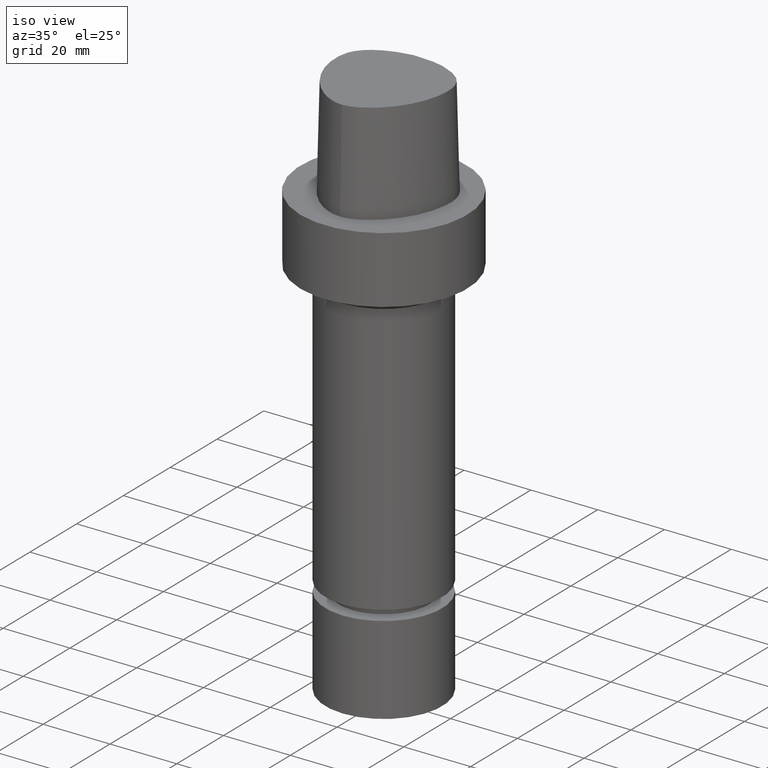
[diagram: clean part render]
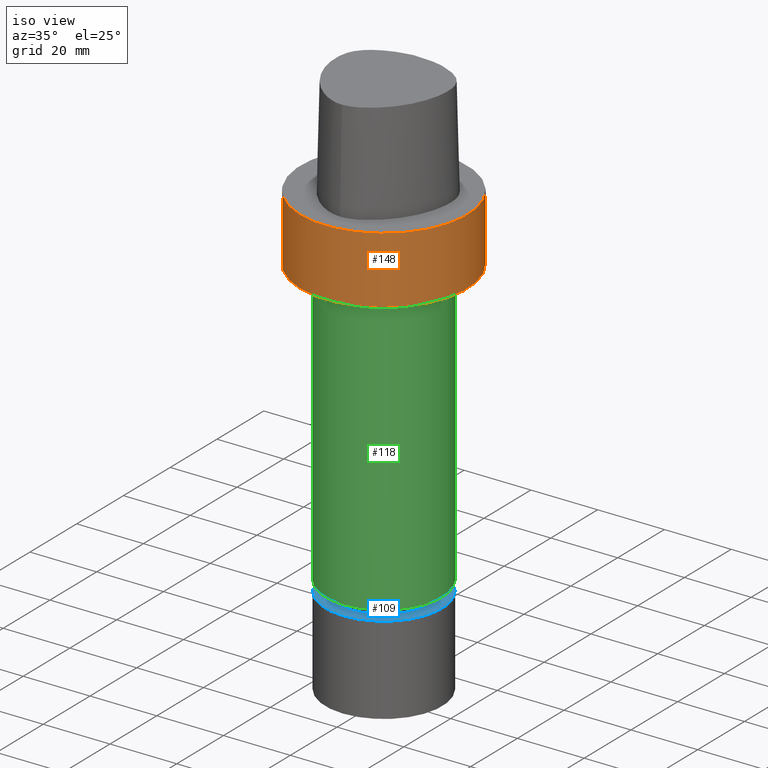
[diagram: same view with three faces highlighted in distinct colors, each labeled with its STEP entity id]
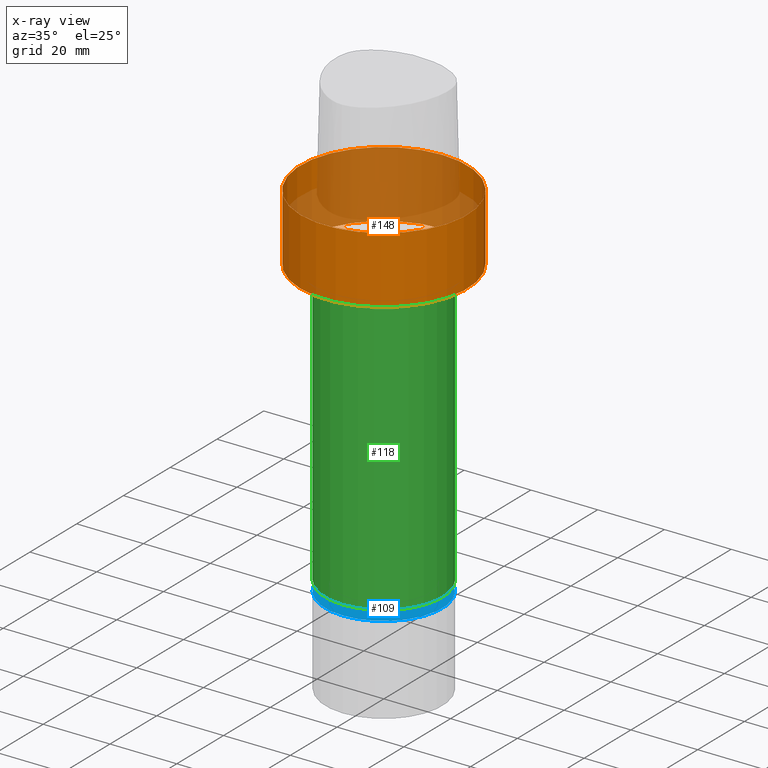
[diagram: x-ray of the same camera — body ghosted, the three highlighted faces saturated]
A machine part, iso view with three faces highlighted in distinct colors.
The next image is the same camera in x-ray (body ghosted, the three faces saturated) — at least one of them is partly hidden behind the body in this view.
Their STEP definitions:

[orange] entity #148 — the highlighted cylindrical surface (bore or boss wall) has radius 25 mm, axis along (0, 0, -1).
#69=EDGE_CURVE('Unnamed[1]',#174,#174,#175,.T.);
#123=EDGE_CURVE('Unnamed[1]',#255,#255,#256,.T.);
#148=ADVANCED_FACE('Unnamed[1]',(#290,#291),#292,.T.);
#174=VERTEX_POINT('',#312);
#175=CIRCLE('',#313,25.0);
#255=VERTEX_POINT('',#939);
#256=CIRCLE('',#940,25.0);
#290=FACE_BOUND('',#986,.T.);
#291=FACE_BOUND('',#987,.T.);
#292=CYLINDRICAL_SURFACE('',#988,25.0);
#312=CARTESIAN_POINT('',(1.22464679914735E-015,25.0,-20.0));
#313=AXIS2_PLACEMENT_3D('',#996,#997,#998);
#939=CARTESIAN_POINT('',(-3.08148791101958E-031,25.0,3.06161699786838E-015));
#940=AXIS2_PLACEMENT_3D('',#1080,#1081,#1082);
#986=EDGE_LOOP('',(#1114));
#987=EDGE_LOOP('',(#1115));
#988=AXIS2_PLACEMENT_3D('',#1116,#1117,#1118);
#996=CARTESIAN_POINT('',(1.22464679914735E-015,2.44929359829471E-015,-20.0));
#997=DIRECTION('',(6.12323399573677E-017,1.22464679914735E-016,-1.0));
#998=DIRECTION('',(-1.23259516440783E-032,1.0,1.22464679914735E-016));
#1080=CARTESIAN_POINT('',(0.0,0.0,0.0));
#1081=DIRECTION('',(6.12323399573677E-017,1.22464679914735E-016,-1.0));
#1082=DIRECTION('',(-1.23259516440783E-032,1.0,1.22464679914735E-016));
#1114=ORIENTED_EDGE('',*,*,#69,.F.);
#1115=ORIENTED_EDGE('',*,*,#123,.T.);
#1116=CARTESIAN_POINT('',(6.12323399573677E-016,1.22464679914735E-015,-10.0));
#1117=DIRECTION('',(6.12323399573677E-017,1.22464679914735E-016,-1.0));
#1118=DIRECTION('',(-1.23259516440783E-032,1.0,1.22464679914735E-016));

[blue] entity #109 — the highlighted planar face has unit normal (-0, -0, 1).
#85=EDGE_CURVE('Unnamed[1]',#198,#198,#199,.T.);
#109=ADVANCED_FACE('Unnamed[1]',(#232),#233,.T.);
#198=VERTEX_POINT('',#774);
#199=CIRCLE('',#775,17.5);
#232=FACE_OUTER_BOUND('',#911,.T.);
#233=PLANE('',#912);
#774=CARTESIAN_POINT('',(6.64370981970575E-015,17.5,-108.500015258789));
#775=AXIS2_PLACEMENT_3D('',#1019,#1020,#1021);
#911=EDGE_LOOP('',(#1052));
#912=AXIS2_PLACEMENT_3D('',#1053,#1054,#1055);
#1019=CARTESIAN_POINT('',(6.64370981970575E-015,1.32874196394115E-014,-108.500015258789));
#1020=DIRECTION('',(6.12323399573677E-017,1.22464679914735E-016,-1.0));
#1021=DIRECTION('',(-1.23259516440783E-032,1.0,1.22464679914735E-016));
#1052=ORIENTED_EDGE('',*,*,#85,.F.);
#1053=CARTESIAN_POINT('',(6.64370981970575E-015,8.75000000000002,-108.500015258789));
#1054=DIRECTION('',(-6.12323399573677E-017,-1.22464679914735E-016,1.0));
#1055=DIRECTION('',(1.23259516440783E-032,-1.0,-1.22464679914735E-016));

[green] entity #118 — the highlighted cylindrical surface (bore or boss wall) has radius 17.5 mm, axis along (0, 0, -1).
#74=EDGE_CURVE('Unnamed[1]',#181,#181,#182,.T.);
#101=EDGE_CURVE('Unnamed[1]',#222,#222,#223,.T.);
#118=ADVANCED_FACE('Unnamed[1]',(#246,#247),#248,.T.);
#181=VERTEX_POINT('',#704);
#182=CIRCLE('',#705,17.4999999999997);
#222=VERTEX_POINT('',#899);
#223=CIRCLE('',#900,17.4999999999995);
#246=FACE_BOUND('',#928,.T.);
#247=FACE_BOUND('',#929,.T.);
#248=CYLINDRICAL_SURFACE('',#930,17.4999999999996);
#704=CARTESIAN_POINT('',(6.46001186550228E-015,17.4999999999997,-105.5));
#705=AXIS2_PLACEMENT_3D('',#1004,#1005,#1006);
#899=CARTESIAN_POINT('',(1.46957615897682E-015,17.4999999999995,-24.0));
#900=AXIS2_PLACEMENT_3D('',#1044,#1045,#1046);
#928=EDGE_LOOP('',(#1069));
#929=EDGE_LOOP('',(#1070));
#930=AXIS2_PLACEMENT_3D('',#1071,#1072,#1073);
#1004=CARTESIAN_POINT('',(6.46001186550228E-015,1.29200237310045E-014,-105.5));
#1005=DIRECTION('',(6.12323399573677E-017,1.22464679914735E-016,-1.0));
#1006=DIRECTION('',(-1.23259516440783E-032,1.0,1.22464679914735E-016));
#1044=CARTESIAN_POINT('',(1.46957615897682E-015,2.93915231795365E-015,-24.0));
#1045=DIRECTION('',(6.12323399573677E-017,1.22464679914735E-016,-1.0));
#1046=DIRECTION('',(-1.23259516440783E-032,1.0,1.22464679914735E-016));
#1069=ORIENTED_EDGE('',*,*,#74,.F.);
#1070=ORIENTED_EDGE('',*,*,#101,.T.);
#1071=CARTESIAN_POINT('',(3.96479401223955E-015,7.9295880244791E-015,-64.7499999999999));
#1072=DIRECTION('',(6.12323399573677E-017,1.22464679914735E-016,-1.0));
#1073=DIRECTION('',(-1.23259516440783E-032,1.0,1.22464679914735E-016));